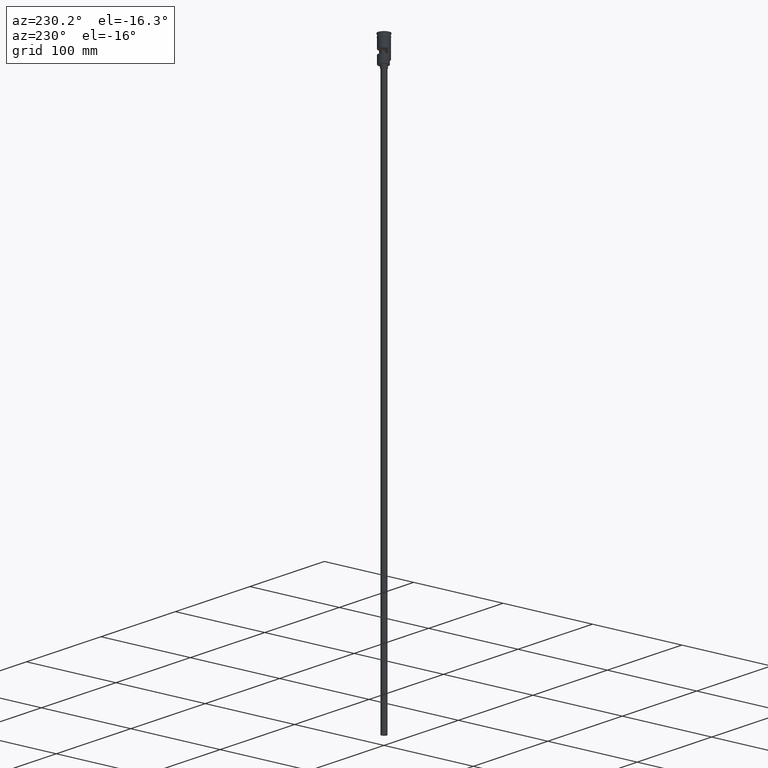
[diagram: clean part render]
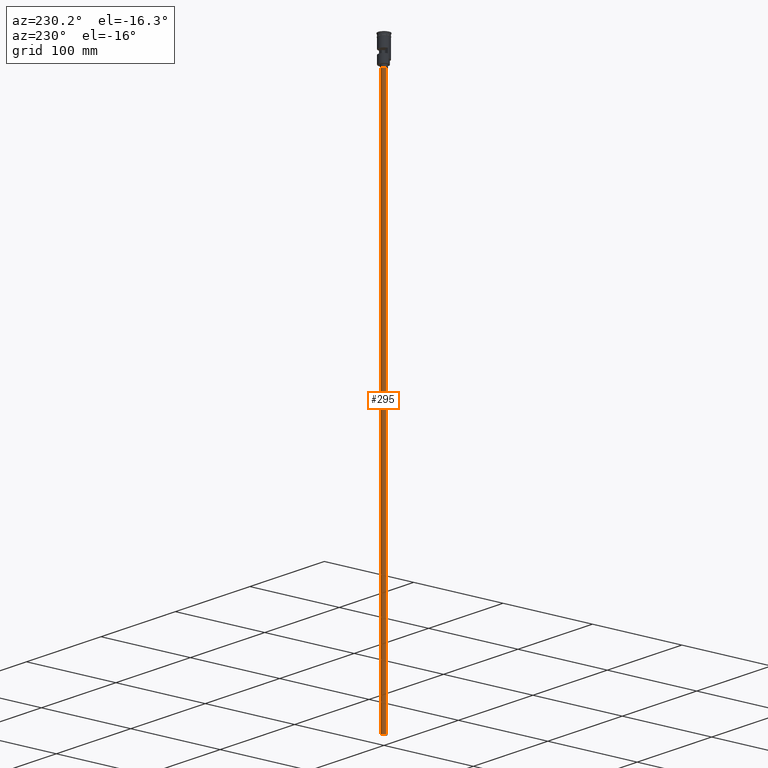
[diagram: same view with one face highlighted and labeled with its STEP entity id]
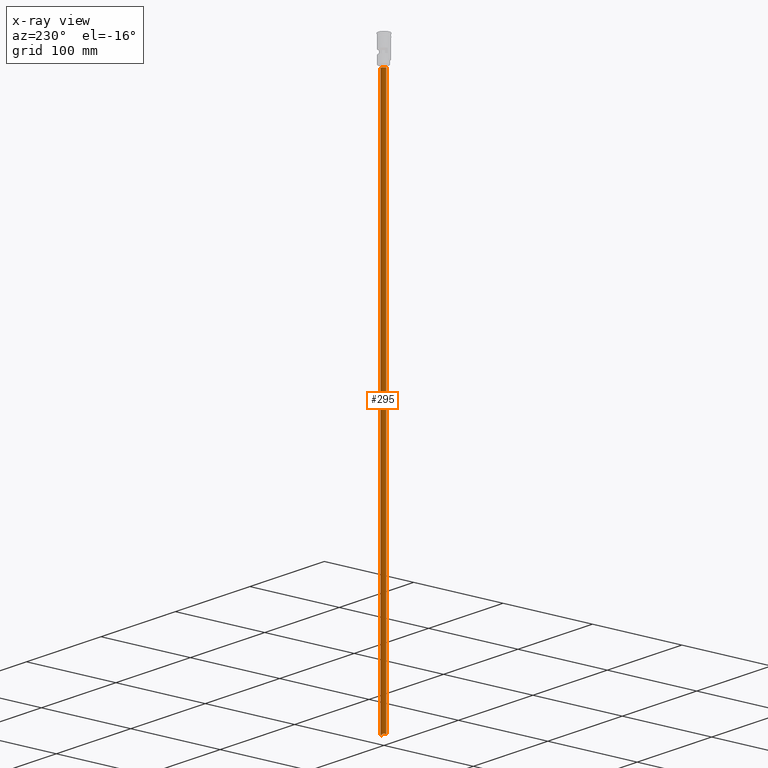
[diagram: x-ray of the same camera — body ghosted, the highlighted face saturated]
A machine part, auxiliary view. The second image highlights one B-rep face of the part: STEP entity #295.
The next image is the same camera in x-ray: the body ghosted, the highlighted face saturated — about 0% of this face is hidden behind the body in this view.
In plain terms, the highlighted cylindrical surface (edge-blend (fillet) strip) has radius 3 mm, axis along (-0, -0, 1).
Its self-contained STEP definition (entity closure, byte-faithful):
#27 = CARTESIAN_POINT ( 'NONE',  ( -3.000000000000000444, 3.673940397442060361E-16, -628.5000000000000000 ) ) ;
#50 = AXIS2_PLACEMENT_3D ( 'NONE', #630, #645, #1466 ) ;
#87 = VERTEX_POINT ( 'NONE', #1112 ) ;
#112 = ORIENTED_EDGE ( 'NONE', *, *, #856, .T. ) ;
#142 = VERTEX_POINT ( 'NONE', #356 ) ;
#149 = DIRECTION ( 'NONE',  ( -0.000000000000000000, -0.000000000000000000, 1.000000000000000000 ) ) ;
#259 = AXIS2_PLACEMENT_3D ( 'NONE', #458, #1564, #954 ) ;
#270 = EDGE_CURVE ( 'NONE', #87, #357, #272, .T. ) ;
#272 = LINE ( 'NONE', #1267, #1446 ) ;
#273 = VERTEX_POINT ( 'NONE', #27 ) ;
#295 = ADVANCED_FACE ( 'NONE', ( #1209 ), #1087, .T. ) ;
#356 = CARTESIAN_POINT ( 'NONE',  ( -3.000000000000000444, 3.673940397442060361E-16, -31.50000000000000000 ) ) ;
#357 = VERTEX_POINT ( 'NONE', #780 ) ;
#439 = ORIENTED_EDGE ( 'NONE', *, *, #270, .F. ) ;
#458 = CARTESIAN_POINT ( 'NONE',  ( 0.000000000000000000, 0.000000000000000000, -628.5000000000000000 ) ) ;
#460 = ORIENTED_EDGE ( 'NONE', *, *, #469, .T. ) ;
#469 = EDGE_CURVE ( 'NONE', #273, #142, #1472, .T. ) ;
#630 = CARTESIAN_POINT ( 'NONE',  ( 0.000000000000000000, 0.000000000000000000, -628.5000000000000000 ) ) ;
#645 = DIRECTION ( 'NONE',  ( 0.000000000000000000, 0.000000000000000000, -1.000000000000000000 ) ) ;
#696 = CARTESIAN_POINT ( 'NONE',  ( 0.000000000000000000, 0.000000000000000000, -31.50000000000000000 ) ) ;
#734 = AXIS2_PLACEMENT_3D ( 'NONE', #696, #1179, #1536 ) ;
#736 = DIRECTION ( 'NONE',  ( -0.000000000000000000, -0.000000000000000000, 1.000000000000000000 ) ) ;
#780 = CARTESIAN_POINT ( 'NONE',  ( 3.000000000000000444, 0.000000000000000000, -31.50000000000000000 ) ) ;
#786 = VECTOR ( 'NONE', #736, 1000.000000000000000 ) ;
#856 = EDGE_CURVE ( 'NONE', #142, #357, #993, .T. ) ;
#908 = ORIENTED_EDGE ( 'NONE', *, *, #1461, .F. ) ;
#954 = DIRECTION ( 'NONE',  ( 1.000000000000000000, 0.000000000000000000, 0.000000000000000000 ) ) ;
#993 = CIRCLE ( 'NONE', #734, 3.000000000000000444 ) ;
#1071 = EDGE_LOOP ( 'NONE', ( #908, #460, #112, #439 ) ) ;
#1087 = CYLINDRICAL_SURFACE ( 'NONE', #259, 3.000000000000000444 ) ;
#1112 = CARTESIAN_POINT ( 'NONE',  ( 3.000000000000000444, 0.000000000000000000, -628.5000000000000000 ) ) ;
#1179 = DIRECTION ( 'NONE',  ( 0.000000000000000000, 0.000000000000000000, -1.000000000000000000 ) ) ;
#1209 = FACE_OUTER_BOUND ( 'NONE', #1071, .T. ) ;
#1229 = CIRCLE ( 'NONE', #50, 3.000000000000000444 ) ;
#1267 = CARTESIAN_POINT ( 'NONE',  ( 3.000000000000000444, 0.000000000000000000, -628.5000000000000000 ) ) ;
#1446 = VECTOR ( 'NONE', #149, 1000.000000000000000 ) ;
#1461 = EDGE_CURVE ( 'NONE', #273, #87, #1229, .T. ) ;
#1466 = DIRECTION ( 'NONE',  ( -1.000000000000000000, 0.000000000000000000, 0.000000000000000000 ) ) ;
#1472 = LINE ( 'NONE', #1480, #786 ) ;
#1480 = CARTESIAN_POINT ( 'NONE',  ( -3.000000000000000444, 3.673940397442060361E-16, -628.5000000000000000 ) ) ;
#1536 = DIRECTION ( 'NONE',  ( -1.000000000000000000, 0.000000000000000000, 0.000000000000000000 ) ) ;
#1564 = DIRECTION ( 'NONE',  ( -0.000000000000000000, -0.000000000000000000, 1.000000000000000000 ) ) ;